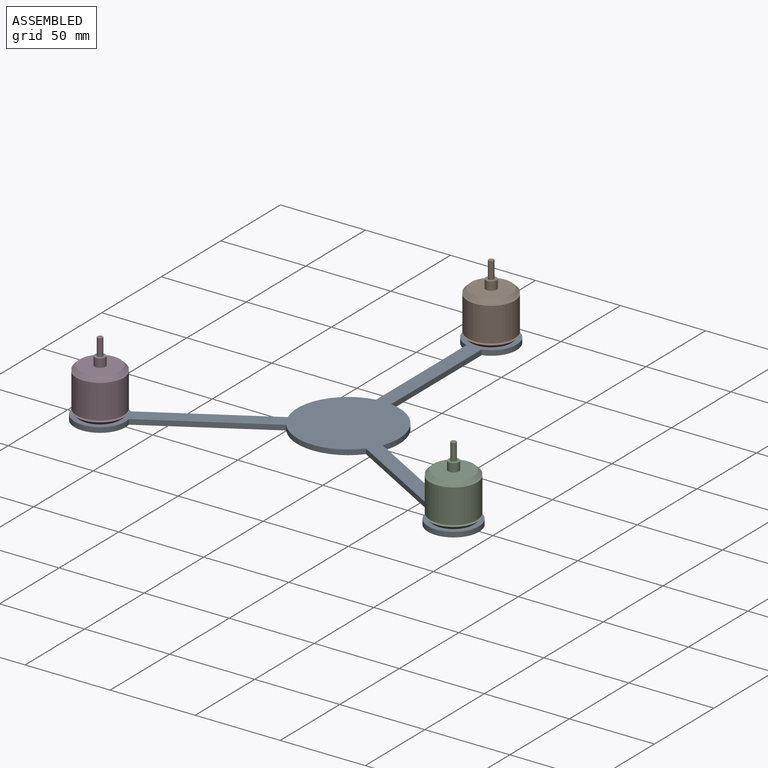
[diagram: assembled view]
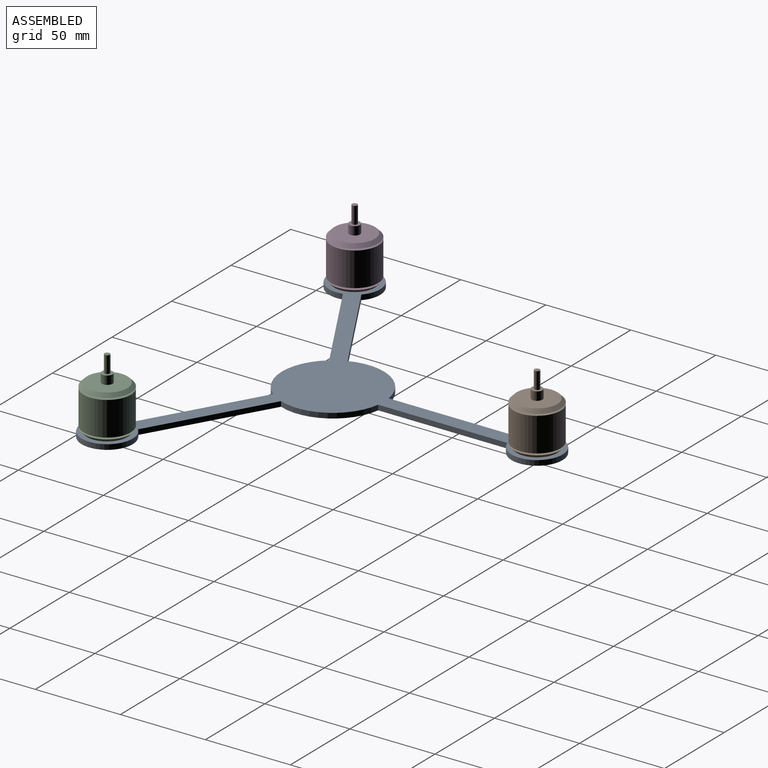
[diagram: assembled view, second angle]
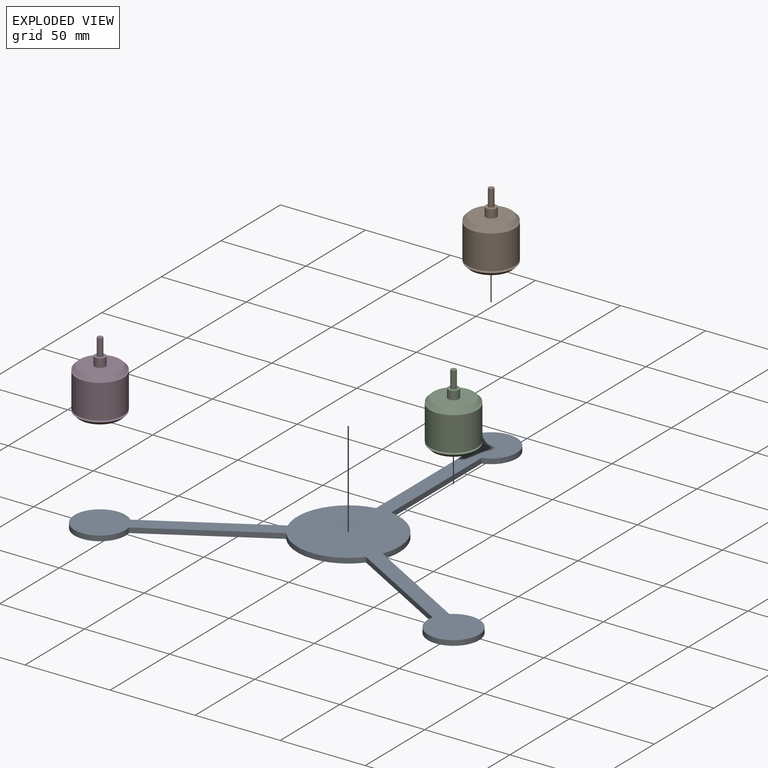
[diagram: exploded view]
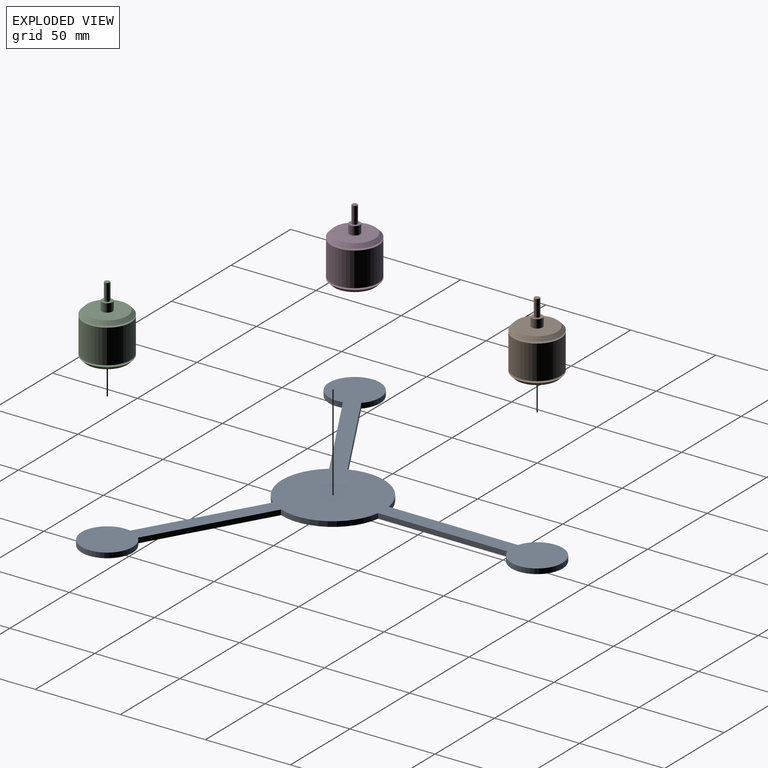
[diagram: exploded view, second angle]
ASSEMBLY  parts=4 mates=3
PART A: 14 faces, bbox 237.8x210x3 mm
  f0: plane 65.82x38mm, normal (0.5,-0.87,0), area 228mm2, adj f1,f11,f12,f13
  f1: cylinder r=30mm len=46.96mm, axis (0,0,-1), area 161.8mm2, adj f0,f2,f12,f13
  f2: plane 65.82x38mm, normal (-0.5,-0.87,0), area 228mm2, adj f1,f3,f12,f13
  f3: cylinder r=15mm len=30mm, axis (0,0,-1), area 255.7mm2, adj f2,f4,f12,f13
  f4: plane 65.82x38mm, normal (0.5,0.87,0), area 228mm2, adj f3,f5,f12,f13
  f5: cylinder r=30mm len=40.67mm, axis (0,0,-1), area 161.8mm2, adj f4,f6,f12,f13
  f6: plane 76x3mm, normal (1,0,0), area 228mm2, adj f5,f7,f12,f13
  f7: cylinder r=15mm len=30mm, axis (0,0,-1), area 255.7mm2, adj f6,f8,f12,f13
  f8: plane 76x3mm, normal (-1,0,0), area 228mm2, adj f7,f9,f12,f13
  f9: cylinder r=30mm len=40.67mm, axis (0,0,-1), area 161.8mm2, adj f8,f10,f12,f13
  f10: plane 65.82x38mm, normal (-0.5,0.87,0), area 228mm2, adj f9,f11,f12,f13
  f11: cylinder r=15mm len=30mm, axis (0,0,-1), area 255.7mm2, adj f0,f10,f12,f13
  f12: plane 237.85x210mm, normal (0,0,1), area 6952.3mm2, adj f0,f1,f2,f3,f4,f5,f6,f7
  f13: plane 237.85x210mm, normal (0,0,-1), area 6952.3mm2, adj f0,f1,f2,f3,f4,f5,f6,f7
PART B: 15 faces, bbox 27.7x27.7x41 mm
  f0: cylinder r=1.59mm len=10mm, axis (0,0,-1), area 99.7mm2, adj f1,f14
  f1: plane 6.35x6.35mm, normal (0,0,1), area 23.8mm2, adj f0,f2
  f2: cylinder r=3.17mm len=6.35mm, axis (0,0,-1), area 99.7mm2, adj f1,f3
  f3: plane 23.7x23.7mm, normal (0,0,1), area 409.5mm2, adj f2,f4
  f4: cone r=13.85mm half-angle=45deg, axis (0,0,-1), area 228.4mm2, adj f3,f5
  f5: plane 27.7x27.7mm, normal (0,0,-1), area 594.7mm2, adj f4,f6
  f6: cylinder r=1.59mm len=3.18mm, axis (0,0,-1), area 10mm2, adj f5,f7
  f7: plane 27.7x27.7mm, normal (0,0,1), area 594.7mm2, adj f6,f8
  f8: cylinder r=13.85mm len=27.7mm, axis (0,0,-1), area 1740.4mm2, adj f7,f9
  f9: plane 27.7x27.7mm, normal (0,0,-1), area 594.7mm2, adj f8,f10
  f10: cylinder r=1.59mm len=3.18mm, axis (0,0,-1), area 10mm2, adj f9,f11
  f11: plane 27.7x27.7mm, normal (0,0,1), area 594.7mm2, adj f10,f12
  f12: cone r=11.85mm half-angle=45deg, axis (0,0,1), area 228.4mm2, adj f11,f13
  f13: plane 23.7x23.7mm, normal (0,0,-1), area 441.2mm2, adj f12
  f14: plane 3.18x3.18mm, normal (0,0,1), area 7.9mm2, adj f0
PART C: same geometry as B
PART D: same geometry as B
PLACE A t=(0,0,-3)mm fixed
PLACE B t=(0,120,0)mm
PLACE C t=(103.92,-60,0)mm
PLACE D t=(-103.92,-60,0)mm
MATE fastened A.f11 <-> D.f0  axis (0,0,1) through (-103.92,-60,0)mm
MATE fastened A.f3 <-> C.f0  axis (0,0,1) through (103.92,-60,0)mm
MATE fastened A.f7 <-> B.f0  axis (0,0,1) through (0,120,0)mm
